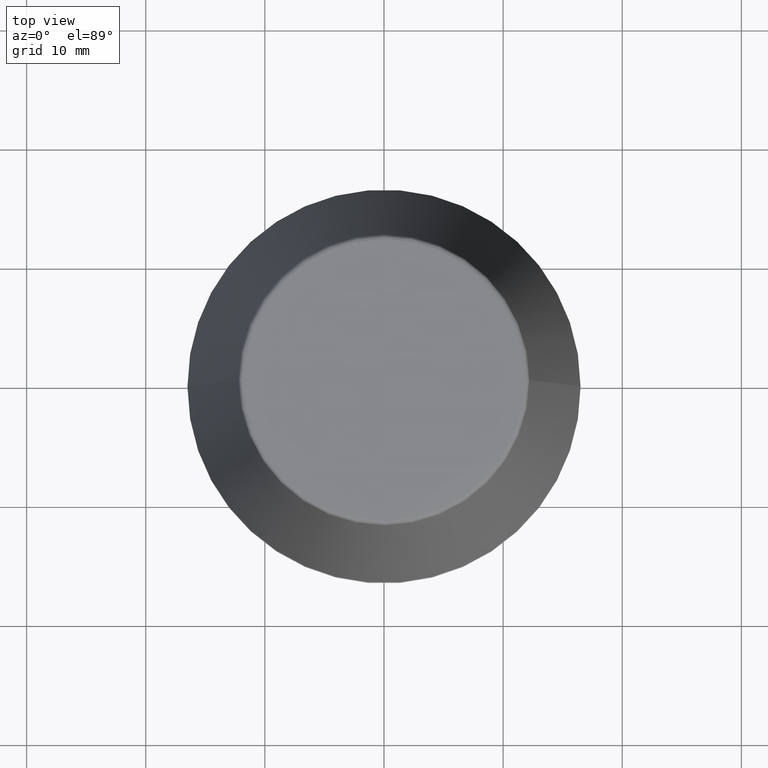
[diagram: clean part render]
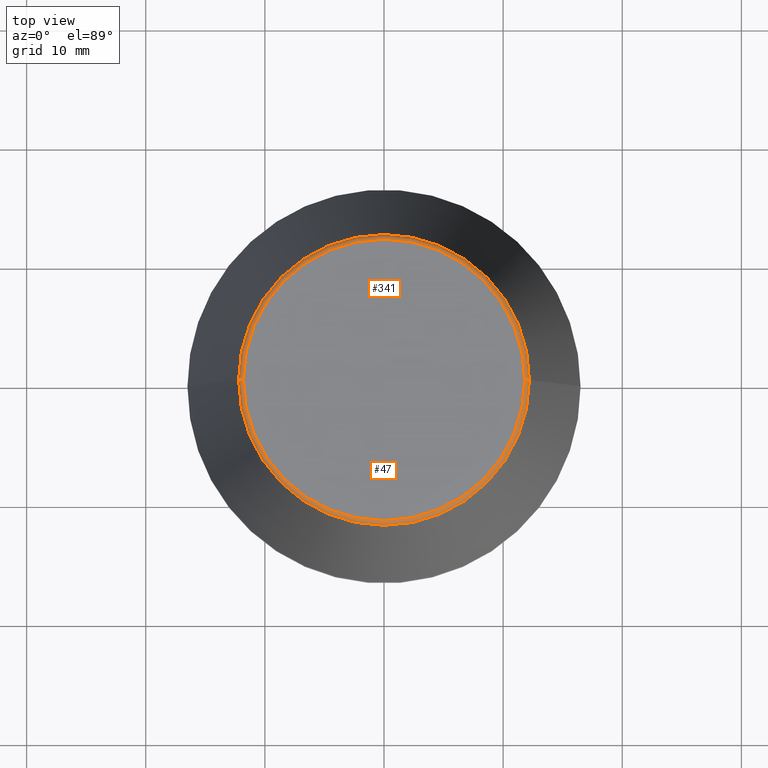
[diagram: same view with one multi-face feature highlighted, each face labeled with its STEP entity id]
A machine part, top view. The highlighted faces form ONE feature: a constant-radius fillet chain: 2 tangent blend faces with common blend radius 0.4 mm. The faces share edges in the B-rep.
Their STEP definitions:
[1] entity #47 (Torus):
#13 = CIRCLE ( 'NONE', #179, 0.4000000000000028000 ) ;
#14 = VERTEX_POINT ( 'NONE', #69 ) ;
#24 = EDGE_LOOP ( 'NONE', ( #72, #382, #114, #170 ) ) ;
#38 = DIRECTION ( 'NONE',  ( -0.0000000000000000000, -0.0000000000000000000, 1.000000000000000000 ) ) ;
#47 = ADVANCED_FACE ( 'NONE', ( #230 ), #383, .T. ) ;
#53 = AXIS2_PLACEMENT_3D ( 'NONE', #300, #38, #246 ) ;
#68 = CARTESIAN_POINT ( 'NONE',  ( -11.80989888411031400, 1.470550059081603400E-015, 40.00000000000000700 ) ) ;
#69 = CARTESIAN_POINT ( 'NONE',  ( -12.20600611160694300, 0.0000000000000000000, 39.65566924038402900 ) ) ;
#70 = VERTEX_POINT ( 'NONE', #363 ) ;
#72 = ORIENTED_EDGE ( 'NONE', *, *, #122, .F. ) ;
#82 = CARTESIAN_POINT ( 'NONE',  ( 0.0000000000000000000, 0.0000000000000000000, 40.00000000000000700 ) ) ;
#88 = DIRECTION ( 'NONE',  ( 0.0000000000000000000, -1.000000000000000000, 0.0000000000000000000 ) ) ;
#109 = DIRECTION ( 'NONE',  ( 1.000000000000000000, 0.0000000000000000000, 0.0000000000000000000 ) ) ;
#114 = ORIENTED_EDGE ( 'NONE', *, *, #308, .T. ) ;
#122 = EDGE_CURVE ( 'NONE', #14, #271, #13, .T. ) ;
#127 = CARTESIAN_POINT ( 'NONE',  ( -11.80989888411031400, 1.446295486667959300E-015, 39.60000000000000100 ) ) ;
#141 = DIRECTION ( 'NONE',  ( 1.000000000000000000, 0.0000000000000000000, 0.0000000000000000000 ) ) ;
#143 = AXIS2_PLACEMENT_3D ( 'NONE', #82, #285, #109 ) ;
#168 = CARTESIAN_POINT ( 'NONE',  ( 11.80989888411031400, 0.0000000000000000000, 39.60000000000000100 ) ) ;
#170 = ORIENTED_EDGE ( 'NONE', *, *, #215, .F. ) ;
#172 = AXIS2_PLACEMENT_3D ( 'NONE', #322, #327, #141 ) ;
#176 = DIRECTION ( 'NONE',  ( 0.0000000000000000000, 0.0000000000000000000, -1.000000000000000000 ) ) ;
#179 = AXIS2_PLACEMENT_3D ( 'NONE', #127, #301, #290 ) ;
#183 = EDGE_CURVE ( 'NONE', #14, #70, #207, .T. ) ;
#196 = CARTESIAN_POINT ( 'NONE',  ( 11.80989888411031400, 0.0000000000000000000, 40.00000000000000700 ) ) ;
#207 = CIRCLE ( 'NONE', #172, 12.20600611160694300 ) ;
#215 = EDGE_CURVE ( 'NONE', #271, #262, #342, .T. ) ;
#230 = FACE_OUTER_BOUND ( 'NONE', #24, .T. ) ;
#246 = DIRECTION ( 'NONE',  ( 1.000000000000000000, 0.0000000000000000000, 0.0000000000000000000 ) ) ;
#262 = VERTEX_POINT ( 'NONE', #196 ) ;
#271 = VERTEX_POINT ( 'NONE', #68 ) ;
#285 = DIRECTION ( 'NONE',  ( -0.0000000000000000000, -0.0000000000000000000, 1.000000000000000000 ) ) ;
#290 = DIRECTION ( 'NONE',  ( -1.000000000000000000, 1.224646799147352500E-016, 0.0000000000000000000 ) ) ;
#300 = CARTESIAN_POINT ( 'NONE',  ( 0.0000000000000000000, 0.0000000000000000000, 39.60000000000000100 ) ) ;
#301 = DIRECTION ( 'NONE',  ( 1.224646799147353200E-016, 1.000000000000000000, 0.0000000000000000000 ) ) ;
#308 = EDGE_CURVE ( 'NONE', #70, #262, #367, .T. ) ;
#322 = CARTESIAN_POINT ( 'NONE',  ( 0.0000000000000000000, 0.0000000000000000000, 39.65566924038402900 ) ) ;
#327 = DIRECTION ( 'NONE',  ( -0.0000000000000000000, -0.0000000000000000000, 1.000000000000000000 ) ) ;
#342 = CIRCLE ( 'NONE', #143, 11.80989888411031400 ) ;
#363 = CARTESIAN_POINT ( 'NONE',  ( 12.20600611160694300, 1.757755848304969800E-015, 39.65566924038402900 ) ) ;
#367 = CIRCLE ( 'NONE', #387, 0.4000000000000045200 ) ;
#382 = ORIENTED_EDGE ( 'NONE', *, *, #183, .T. ) ;
#383 = TOROIDAL_SURFACE ( 'NONE', #53, 11.80989888411031400, 0.4000000000000026900 ) ;
#387 = AXIS2_PLACEMENT_3D ( 'NONE', #168, #88, #176 ) ;
[2] entity #341 (Torus):
#13 = CIRCLE ( 'NONE', #179, 0.4000000000000028000 ) ;
#14 = VERTEX_POINT ( 'NONE', #69 ) ;
#34 = CARTESIAN_POINT ( 'NONE',  ( 0.0000000000000000000, 0.0000000000000000000, 40.00000000000000700 ) ) ;
#60 = DIRECTION ( 'NONE',  ( -0.0000000000000000000, -0.0000000000000000000, 1.000000000000000000 ) ) ;
#68 = CARTESIAN_POINT ( 'NONE',  ( -11.80989888411031400, 1.470550059081603400E-015, 40.00000000000000700 ) ) ;
#69 = CARTESIAN_POINT ( 'NONE',  ( -12.20600611160694300, 0.0000000000000000000, 39.65566924038402900 ) ) ;
#70 = VERTEX_POINT ( 'NONE', #363 ) ;
#79 = CIRCLE ( 'NONE', #380, 12.20600611160694300 ) ;
#83 = ORIENTED_EDGE ( 'NONE', *, *, #122, .T. ) ;
#85 = DIRECTION ( 'NONE',  ( 1.000000000000000000, 0.0000000000000000000, 0.0000000000000000000 ) ) ;
#88 = DIRECTION ( 'NONE',  ( 0.0000000000000000000, -1.000000000000000000, 0.0000000000000000000 ) ) ;
#89 = DIRECTION ( 'NONE',  ( -0.0000000000000000000, -0.0000000000000000000, 1.000000000000000000 ) ) ;
#90 = TOROIDAL_SURFACE ( 'NONE', #340, 11.80989888411031400, 0.4000000000000026900 ) ;
#94 = EDGE_CURVE ( 'NONE', #262, #271, #258, .T. ) ;
#98 = FACE_OUTER_BOUND ( 'NONE', #247, .T. ) ;
#110 = DIRECTION ( 'NONE',  ( 1.000000000000000000, 0.0000000000000000000, 0.0000000000000000000 ) ) ;
#122 = EDGE_CURVE ( 'NONE', #14, #271, #13, .T. ) ;
#127 = CARTESIAN_POINT ( 'NONE',  ( -11.80989888411031400, 1.446295486667959300E-015, 39.60000000000000100 ) ) ;
#168 = CARTESIAN_POINT ( 'NONE',  ( 11.80989888411031400, 0.0000000000000000000, 39.60000000000000100 ) ) ;
#176 = DIRECTION ( 'NONE',  ( 0.0000000000000000000, 0.0000000000000000000, -1.000000000000000000 ) ) ;
#179 = AXIS2_PLACEMENT_3D ( 'NONE', #127, #301, #290 ) ;
#184 = CARTESIAN_POINT ( 'NONE',  ( 0.0000000000000000000, 0.0000000000000000000, 39.65566924038402900 ) ) ;
#196 = CARTESIAN_POINT ( 'NONE',  ( 11.80989888411031400, 0.0000000000000000000, 40.00000000000000700 ) ) ;
#212 = DIRECTION ( 'NONE',  ( -0.0000000000000000000, -0.0000000000000000000, 1.000000000000000000 ) ) ;
#229 = ORIENTED_EDGE ( 'NONE', *, *, #309, .T. ) ;
#247 = EDGE_LOOP ( 'NONE', ( #229, #83, #312, #317 ) ) ;
#258 = CIRCLE ( 'NONE', #368, 11.80989888411031400 ) ;
#262 = VERTEX_POINT ( 'NONE', #196 ) ;
#271 = VERTEX_POINT ( 'NONE', #68 ) ;
#287 = CARTESIAN_POINT ( 'NONE',  ( 0.0000000000000000000, 0.0000000000000000000, 39.60000000000000100 ) ) ;
#290 = DIRECTION ( 'NONE',  ( -1.000000000000000000, 1.224646799147352500E-016, 0.0000000000000000000 ) ) ;
#294 = DIRECTION ( 'NONE',  ( 1.000000000000000000, 0.0000000000000000000, 0.0000000000000000000 ) ) ;
#301 = DIRECTION ( 'NONE',  ( 1.224646799147353200E-016, 1.000000000000000000, 0.0000000000000000000 ) ) ;
#308 = EDGE_CURVE ( 'NONE', #70, #262, #367, .T. ) ;
#309 = EDGE_CURVE ( 'NONE', #70, #14, #79, .T. ) ;
#312 = ORIENTED_EDGE ( 'NONE', *, *, #94, .F. ) ;
#317 = ORIENTED_EDGE ( 'NONE', *, *, #308, .F. ) ;
#340 = AXIS2_PLACEMENT_3D ( 'NONE', #287, #60, #110 ) ;
#341 = ADVANCED_FACE ( 'NONE', ( #98 ), #90, .T. ) ;
#363 = CARTESIAN_POINT ( 'NONE',  ( 12.20600611160694300, 1.757755848304969800E-015, 39.65566924038402900 ) ) ;
#367 = CIRCLE ( 'NONE', #387, 0.4000000000000045200 ) ;
#368 = AXIS2_PLACEMENT_3D ( 'NONE', #34, #89, #294 ) ;
#380 = AXIS2_PLACEMENT_3D ( 'NONE', #184, #212, #85 ) ;
#387 = AXIS2_PLACEMENT_3D ( 'NONE', #168, #88, #176 ) ;